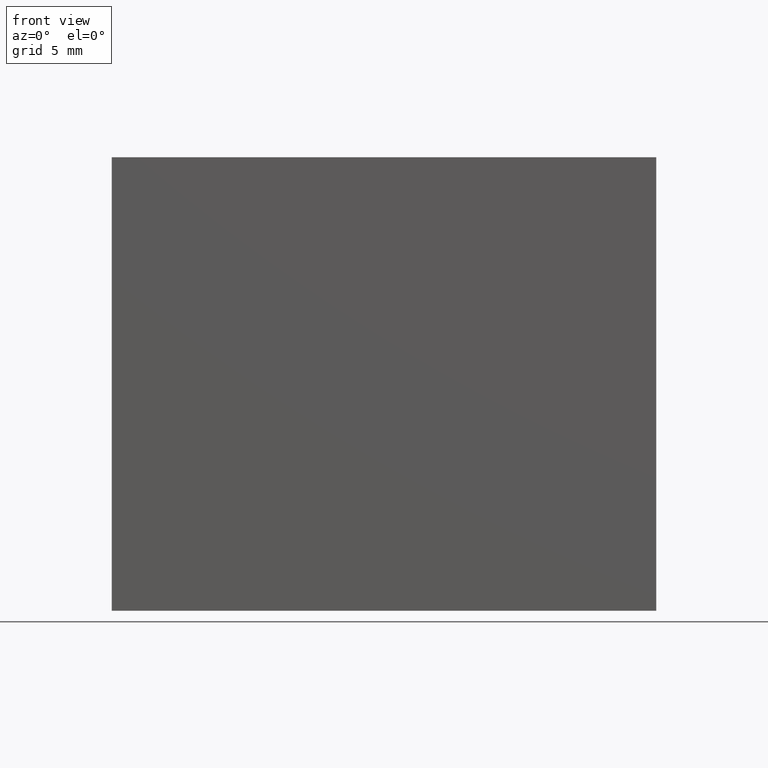
[diagram: clean part render]
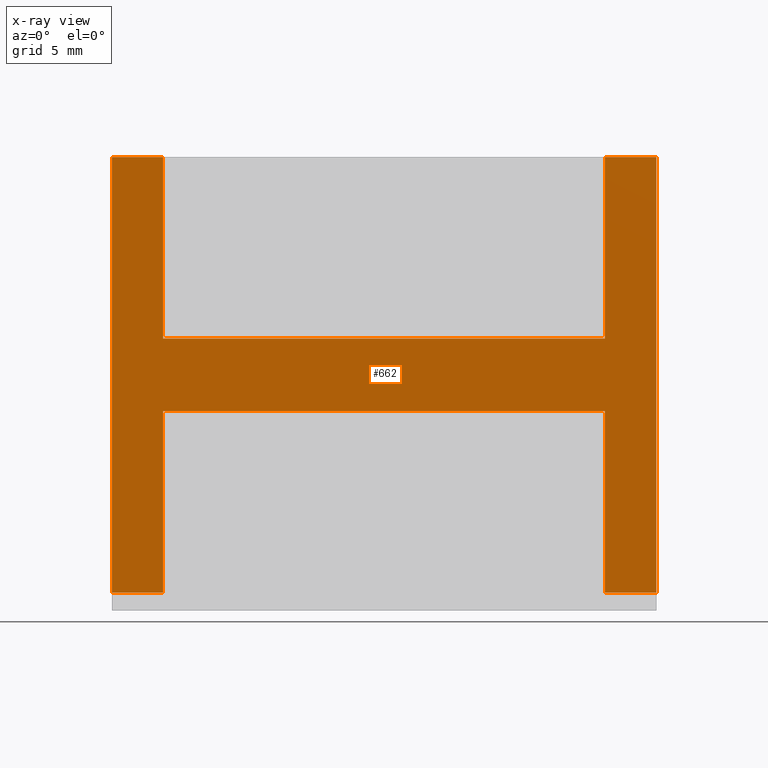
[diagram: x-ray — body ghosted, one internal face saturated and labeled with its STEP entity id]
A machine part, front view, then the same camera in x-ray: the body is ghosted and one INTERNAL B-rep face — a face not visible from any outside direction — is saturated and labeled: STEP entity #662.
In plain terms, the highlighted planar face has unit normal (-0, -1, 0).
Its self-contained STEP definition (entity closure, byte-faithful):
#51=FACE_OUTER_BOUND('',#86,.T.);
#86=EDGE_LOOP('',(#479,#480,#481,#482,#483,#484,#485,#486,#487,#488,#489,
#490));
#121=LINE('',#985,#206);
#122=LINE('',#989,#207);
#126=LINE('',#997,#211);
#131=LINE('',#1006,#216);
#137=LINE('',#1018,#222);
#138=LINE('',#1021,#223);
#140=LINE('',#1025,#225);
#144=LINE('',#1032,#229);
#145=LINE('',#1035,#230);
#146=LINE('',#1036,#231);
#147=LINE('',#1038,#232);
#148=LINE('',#1039,#233);
#206=VECTOR('',#807,10.);
#207=VECTOR('',#810,10.);
#211=VECTOR('',#816,10.);
#216=VECTOR('',#823,10.);
#222=VECTOR('',#835,10.);
#223=VECTOR('',#838,10.);
#225=VECTOR('',#842,10.);
#229=VECTOR('',#846,10.);
#230=VECTOR('',#849,10.);
#231=VECTOR('',#850,10.);
#232=VECTOR('',#851,10.);
#233=VECTOR('',#852,10.);
#289=VERTEX_POINT('',#979);
#291=VERTEX_POINT('',#983);
#292=VERTEX_POINT('',#987);
#293=VERTEX_POINT('',#988);
#296=VERTEX_POINT('',#996);
#299=VERTEX_POINT('',#1004);
#302=VERTEX_POINT('',#1016);
#303=VERTEX_POINT('',#1020);
#304=VERTEX_POINT('',#1024);
#307=VERTEX_POINT('',#1030);
#308=VERTEX_POINT('',#1034);
#309=VERTEX_POINT('',#1037);
#351=EDGE_CURVE('',#291,#289,#121,.T.);
#352=EDGE_CURVE('',#292,#293,#122,.T.);
#356=EDGE_CURVE('',#289,#296,#126,.T.);
#361=EDGE_CURVE('',#299,#293,#131,.T.);
#367=EDGE_CURVE('',#291,#302,#137,.T.);
#368=EDGE_CURVE('',#303,#292,#138,.T.);
#370=EDGE_CURVE('',#296,#304,#140,.T.);
#374=EDGE_CURVE('',#307,#302,#144,.T.);
#375=EDGE_CURVE('',#308,#299,#145,.T.);
#376=EDGE_CURVE('',#304,#308,#146,.T.);
#377=EDGE_CURVE('',#307,#309,#147,.T.);
#378=EDGE_CURVE('',#303,#309,#148,.T.);
#479=ORIENTED_EDGE('',*,*,#361,.F.);
#480=ORIENTED_EDGE('',*,*,#375,.F.);
#481=ORIENTED_EDGE('',*,*,#376,.F.);
#482=ORIENTED_EDGE('',*,*,#370,.F.);
#483=ORIENTED_EDGE('',*,*,#356,.F.);
#484=ORIENTED_EDGE('',*,*,#351,.F.);
#485=ORIENTED_EDGE('',*,*,#367,.T.);
#486=ORIENTED_EDGE('',*,*,#374,.F.);
#487=ORIENTED_EDGE('',*,*,#377,.T.);
#488=ORIENTED_EDGE('',*,*,#378,.F.);
#489=ORIENTED_EDGE('',*,*,#368,.T.);
#490=ORIENTED_EDGE('',*,*,#352,.T.);
#630=PLANE('',#763);
#662=ADVANCED_FACE('',(#51),#630,.F.);
#763=AXIS2_PLACEMENT_3D('',#1033,#847,#848);
#807=DIRECTION('',(1.,7.29409867822582E-16,0.));
#810=DIRECTION('',(1.,7.29409867822582E-16,0.));
#816=DIRECTION('',(0.,0.,-1.));
#823=DIRECTION('',(0.,0.,-1.));
#835=DIRECTION('',(0.,0.,-1.));
#838=DIRECTION('',(0.,0.,-1.));
#842=DIRECTION('',(1.,-6.27687929116689E-15,0.));
#846=DIRECTION('',(1.,0.,0.));
#847=DIRECTION('center_axis',(-6.27687929116689E-15,-1.,0.));
#848=DIRECTION('ref_axis',(0.,0.,-1.));
#849=DIRECTION('',(-1.,6.27687929116689E-15,0.));
#850=DIRECTION('',(0.,0.,1.));
#851=DIRECTION('',(0.,0.,1.));
#852=DIRECTION('',(-1.,0.,0.));
#979=CARTESIAN_POINT('',(21.1766712911562,-5.99999999999998,11.));
#983=CARTESIAN_POINT('',(-3.17667129115619,-6.,11.));
#985=CARTESIAN_POINT('',(-3.17667129115619,-6.,11.));
#987=CARTESIAN_POINT('',(-3.17667129115619,-6.,15.));
#988=CARTESIAN_POINT('',(21.1766712911562,-5.99999999999998,15.));
#989=CARTESIAN_POINT('',(-3.17667129115619,-6.,15.));
#996=CARTESIAN_POINT('',(21.1766712911562,-5.99999999999998,1.));
#997=CARTESIAN_POINT('',(21.1766712911562,-5.99999999999998,25.));
#1004=CARTESIAN_POINT('',(21.1766712911562,-5.99999999999998,25.));
#1006=CARTESIAN_POINT('',(21.1766712911562,-5.99999999999998,25.));
#1016=CARTESIAN_POINT('',(-3.17667129115619,-6.,1.));
#1018=CARTESIAN_POINT('',(-3.17667129115619,-6.,25.));
#1020=CARTESIAN_POINT('',(-3.17667129115619,-6.,25.));
#1021=CARTESIAN_POINT('',(-3.17667129115619,-6.,25.));
#1024=CARTESIAN_POINT('',(24.0066712911562,-6.,1.));
#1025=CARTESIAN_POINT('',(21.1766712911562,-5.99999999999998,1.));
#1030=CARTESIAN_POINT('',(-6.0066712911562,-6.,1.));
#1032=CARTESIAN_POINT('',(-6.0066712911562,-6.,1.));
#1033=CARTESIAN_POINT('Origin',(21.1766712911562,-5.99999999999998,25.));
#1034=CARTESIAN_POINT('',(24.0066712911562,-6.,25.));
#1035=CARTESIAN_POINT('',(15.0883356455781,-5.99999999999994,25.));
#1036=CARTESIAN_POINT('',(24.0066712911562,-6.,0.));
#1037=CARTESIAN_POINT('',(-6.0066712911562,-6.,25.));
#1038=CARTESIAN_POINT('',(-6.0066712911562,-6.,0.));
#1039=CARTESIAN_POINT('',(1.4966643544219,-6.,25.));